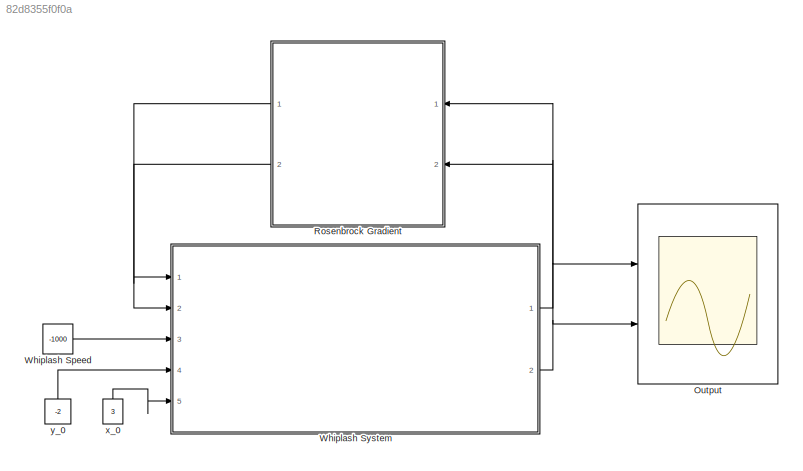
MODEL slx_82d8355f0f0a
KIND model
CONFIG AbsTol = auto
CONFIG EnableMultiTasking = off
CONFIG FixedStep = .001
CONFIG MaxStep = auto
CONFIG MinStep = auto
CONFIG RelTol = 1e-3
CONFIG SampleTimeConstraint = Unconstrained
CONFIG SolverName = ode1
CONFIG StartTime = 0.0
CONFIG StopTime = 30
BLOCK [Scope] Output
  Floating = off
  NumInputPorts = 2
  Ports = [2]
  ScopeSpecificationString = Simulink.scopes.TimeScopeBlockCfg('CurrentConfiguration', extmgr.ConfigurationSet(extmgr.Configuration('Core','General UI',true),extmgr.Configuration('Core','Source UI',true),extmgr.Configuration('Sources','WiredSimulink',true,'DataLoggingVariableName','ScopeData2'),extmgr.Configuration('Visuals','Time Domain',true,'SerializedDisplays',{struct('MinYLimReal','-1.25302','MaxYLimReal','11.25361','YLa...<+2091ch>
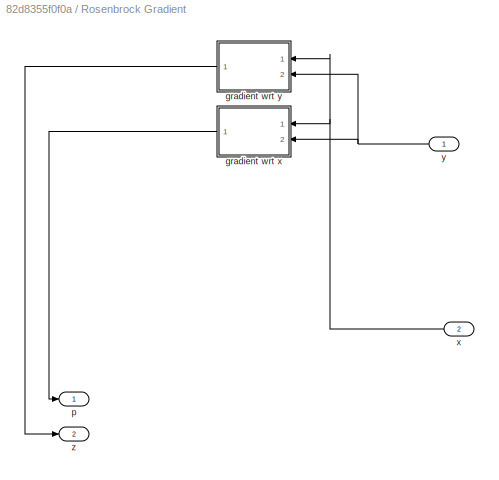
BLOCK [SubSystem] Rosenbrock Gradient
  NameLocation = top
  Ports = [2, 2]
  RequestExecContextInheritance = off
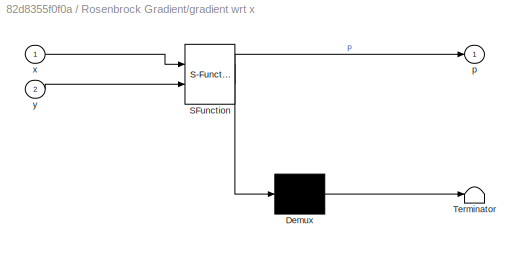
BLOCK [SubSystem] Rosenbrock Gradient/gradient wrt x
  ErrorFcn = Stateflow.Translate.translate
  NameLocation = top
  PermitHierarchicalResolution = ExplicitOnly
  Ports = [2, 1]
  RequestExecContextInheritance = off
  SFBlockType = MATLAB Function
  TreatAsAtomicUnit = on
BLOCK [Demux] Rosenbrock Gradient/gradient wrt x/ Demux 
  Outputs = 1
  Ports = [1, 1]
BLOCK [S-Function] Rosenbrock Gradient/gradient wrt x/ SFunction 
  EnableBusSupport = on
  FunctionName = sf_sfun
  PortCounts = [2 2]
  Ports = [2, 2]
  SFcnIsStateOwnerBlock = off
  SFunctionDeploymentMode = off
  Tag = Stateflow S-Function 1
BLOCK [Terminator] Rosenbrock Gradient/gradient wrt x/ Terminator 
BLOCK [Outport] Rosenbrock Gradient/gradient wrt x/p
BLOCK [Inport] Rosenbrock Gradient/gradient wrt x/x
BLOCK [Inport] Rosenbrock Gradient/gradient wrt x/y
  Port = 2
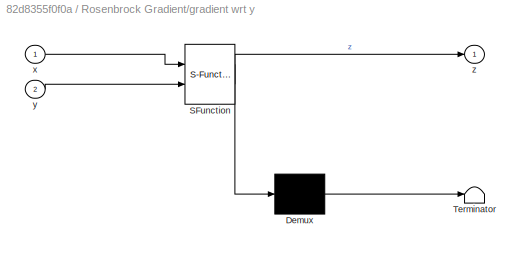
BLOCK [SubSystem] Rosenbrock Gradient/gradient wrt y
  ErrorFcn = Stateflow.Translate.translate
  NameLocation = top
  PermitHierarchicalResolution = ExplicitOnly
  Ports = [2, 1]
  RequestExecContextInheritance = off
  SFBlockType = MATLAB Function
  TreatAsAtomicUnit = on
BLOCK [Demux] Rosenbrock Gradient/gradient wrt y/ Demux 
  Outputs = 1
  Ports = [1, 1]
BLOCK [S-Function] Rosenbrock Gradient/gradient wrt y/ SFunction 
  EnableBusSupport = on
  FunctionName = sf_sfun
  PortCounts = [2 2]
  Ports = [2, 2]
  SFcnIsStateOwnerBlock = off
  SFunctionDeploymentMode = off
  Tag = Stateflow S-Function 2
BLOCK [Terminator] Rosenbrock Gradient/gradient wrt y/ Terminator 
BLOCK [Inport] Rosenbrock Gradient/gradient wrt y/x
BLOCK [Inport] Rosenbrock Gradient/gradient wrt y/y
  Port = 2
BLOCK [Outport] Rosenbrock Gradient/gradient wrt y/z
BLOCK [Outport] Rosenbrock Gradient/p
BLOCK [Inport] Rosenbrock Gradient/x
  Port = 2
BLOCK [Inport] Rosenbrock Gradient/y
BLOCK [Outport] Rosenbrock Gradient/z
  Port = 2
BLOCK [Constant] Whiplash Speed
  Value = -1000
  VectorParams1D = off
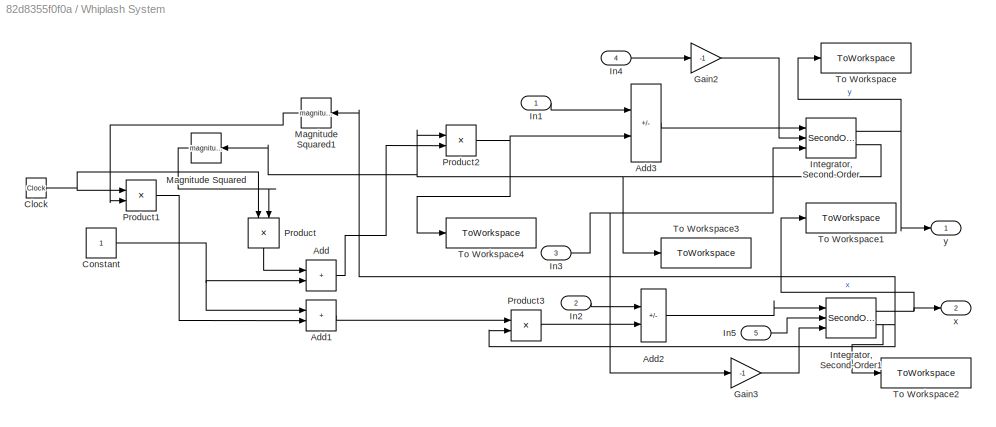
BLOCK [SubSystem] Whiplash System
  Ports = [5, 2]
  RequestExecContextInheritance = off
BLOCK [Sum] Whiplash System/Add
  IconShape = rectangular
  Ports = [2, 1]
BLOCK [Sum] Whiplash System/Add1
  IconShape = rectangular
  Ports = [2, 1]
BLOCK [Sum] Whiplash System/Add2
  IconShape = rectangular
  Inputs = --
  Ports = [2, 1]
BLOCK [Sum] Whiplash System/Add3
  IconShape = rectangular
  Inputs = --
  Ports = [2, 1]
BLOCK [Clock] Whiplash System/Clock
BLOCK [Constant] Whiplash System/Constant
BLOCK [Gain] Whiplash System/Gain2
  Gain = -1
BLOCK [Gain] Whiplash System/Gain3
  Gain = -1
BLOCK [Inport] Whiplash System/In1
BLOCK [Inport] Whiplash System/In2
  Port = 2
BLOCK [Inport] Whiplash System/In3
  Port = 3
BLOCK [Inport] Whiplash System/In4
  Port = 4
BLOCK [Inport] Whiplash System/In5
  Port = 5
BLOCK [SecondOrderIntegrator] Whiplash System/Integrator, Second-Order
  ICDXDT = 0
  ICSourceDXDT = external
  ICSourceX = external
  ICX = 2.0
  Ports = [3, 2]
BLOCK [SecondOrderIntegrator] Whiplash System/Integrator, Second-Order1
  ICDXDT = 0
  ICSourceDXDT = external
  ICSourceX = external
  ICX = 2.0
  Ports = [3, 2]
BLOCK [Math] Whiplash System/Magnitude Squared
  NameLocation = top
  Operator = magnitude^2
  Ports = [1, 1]
BLOCK [Math] Whiplash System/Magnitude Squared1
  NameLocation = top
  Operator = magnitude^2
  Ports = [1, 1]
BLOCK [Product] Whiplash System/Product
  NameLocation = left
  Ports = [2, 1]
BLOCK [Product] Whiplash System/Product1
  Ports = [2, 1]
BLOCK [Product] Whiplash System/Product2
  Ports = [2, 1]
BLOCK [Product] Whiplash System/Product3
  Ports = [2, 1]
BLOCK [ToWorkspace] Whiplash System/To Workspace
  FixptAsFi = on
  MaxDataPoints = inf
  Ports = [1]
  SampleTime = -1
  SaveFormat = Timeseries
  VariableName = simout
BLOCK [ToWorkspace] Whiplash System/To Workspace1
  FixptAsFi = on
  MaxDataPoints = inf
  Ports = [1]
  SampleTime = -1
  SaveFormat = Timeseries
  VariableName = simout1
BLOCK [ToWorkspace] Whiplash System/To Workspace2
  FixptAsFi = on
  MaxDataPoints = inf
  Ports = [1]
  SampleTime = -1
  SaveFormat = Timeseries
  VariableName = simout2
BLOCK [ToWorkspace] Whiplash System/To Workspace3
  FixptAsFi = on
  MaxDataPoints = inf
  Ports = [1]
  SampleTime = -1
  SaveFormat = Timeseries
  VariableName = simout3
BLOCK [ToWorkspace] Whiplash System/To Workspace4
  FixptAsFi = on
  MaxDataPoints = inf
  Ports = [1]
  SampleTime = -1
  SaveFormat = Timeseries
  VariableName = simout4
BLOCK [Outport] Whiplash System/x
  Port = 2
BLOCK [Outport] Whiplash System/y
BLOCK [Constant] x_0
  NameLocation = right
  Value = 3
BLOCK [Constant] y_0
  NameLocation = right
  Value = -2
LINE Rosenbrock Gradient/gradient wrt x:1 -> Rosenbrock Gradient/p:1
LINE Rosenbrock Gradient/gradient wrt y:1 -> Rosenbrock Gradient/z:1
NET Rosenbrock Gradient/x:1 -> Rosenbrock Gradient/gradient wrt x:1, Rosenbrock Gradient/gradient wrt y:1
NET Rosenbrock Gradient/y:1 -> Rosenbrock Gradient/gradient wrt x:2, Rosenbrock Gradient/gradient wrt y:2
LINE Rosenbrock Gradient:1 -> Whiplash System:1
LINE Rosenbrock Gradient:2 -> Whiplash System:2
LINE Whiplash Speed:1 -> Whiplash System:3
LINE Whiplash System/Add1:1 -> Whiplash System/Product3:1
LINE Whiplash System/Add2:1 -> Whiplash System/Integrator, Second-Order1:1
LINE Whiplash System/Add3:1 -> Whiplash System/Integrator, Second-Order:1
LINE Whiplash System/Add:1 -> Whiplash System/Product2:2
NET Whiplash System/Clock:1 -> Whiplash System/Product1:1, Whiplash System/Product:1
NET Whiplash System/Constant:1 -> Whiplash System/Add1:1, Whiplash System/Add:2
LINE Whiplash System/Gain2:1 -> Whiplash System/Integrator, Second-Order:2
LINE Whiplash System/Gain3:1 -> Whiplash System/Integrator, Second-Order1:3
LINE Whiplash System/In1:1 -> Whiplash System/Add3:1
LINE Whiplash System/In2:1 -> Whiplash System/Add2:1
NET Whiplash System/In3:1 -> Whiplash System/Gain3:1, Whiplash System/Integrator, Second-Order:3
LINE Whiplash System/In4:1 -> Whiplash System/Gain2:1
LINE Whiplash System/In5:1 -> Whiplash System/Integrator, Second-Order1:2
NET Whiplash System/Integrator, Second-Order1:1 -> Whiplash System/To Workspace1:1, Whiplash System/x:1
NET Whiplash System/Integrator, Second-Order1:2 -> Whiplash System/Magnitude Squared1:1, Whiplash System/Product3:2, Whiplash System/To Workspace2:1
NET Whiplash System/Integrator, Second-Order:1 -> Whiplash System/To Workspace:1, Whiplash System/y:1
NET Whiplash System/Integrator, Second-Order:2 -> Whiplash System/Magnitude Squared:1, Whiplash System/Product2:1, Whiplash System/To Workspace3:1
LINE Whiplash System/Magnitude Squared1:1 -> Whiplash System/Product1:2
LINE Whiplash System/Magnitude Squared:1 -> Whiplash System/Product:2
LINE Whiplash System/Product1:1 -> Whiplash System/Add1:2
NET Whiplash System/Product2:1 -> Whiplash System/Add3:2, Whiplash System/To Workspace4:1
LINE Whiplash System/Product3:1 -> Whiplash System/Add2:2
LINE Whiplash System/Product:1 -> Whiplash System/Add:1
NET Whiplash System:1 -> Output:1, Rosenbrock Gradient:1
NET Whiplash System:2 -> Output:2, Rosenbrock Gradient:2
LINE x_0:1 -> Whiplash System:5
LINE y_0:1 -> Whiplash System:4
note: NET lines group one-source signal fan-out (src -> all destinations, sorted); 1:1 wires keep LINE
CHART Rosenbrock Gradient/gradient wrt y states=1 transitions=1
  STATE_LABEL 'eML_blk_kernel()'
  STATE_LABEL 'SCRIPT:\nfunction z = fcn(x,y)\n\nz = 400*(x^2+2*x-y)*(1+x)+2*x;\n'
CHART Rosenbrock Gradient/gradient wrt x states=1 transitions=1
  STATE_LABEL 'eML_blk_kernel()'
  STATE_LABEL 'SCRIPT:\nfunction p = fcn(x,y)\n\np = -200*(x^2+2*x-y);\n'
CHART  states=0 transitions=0
CHART  states=0 transitions=0
